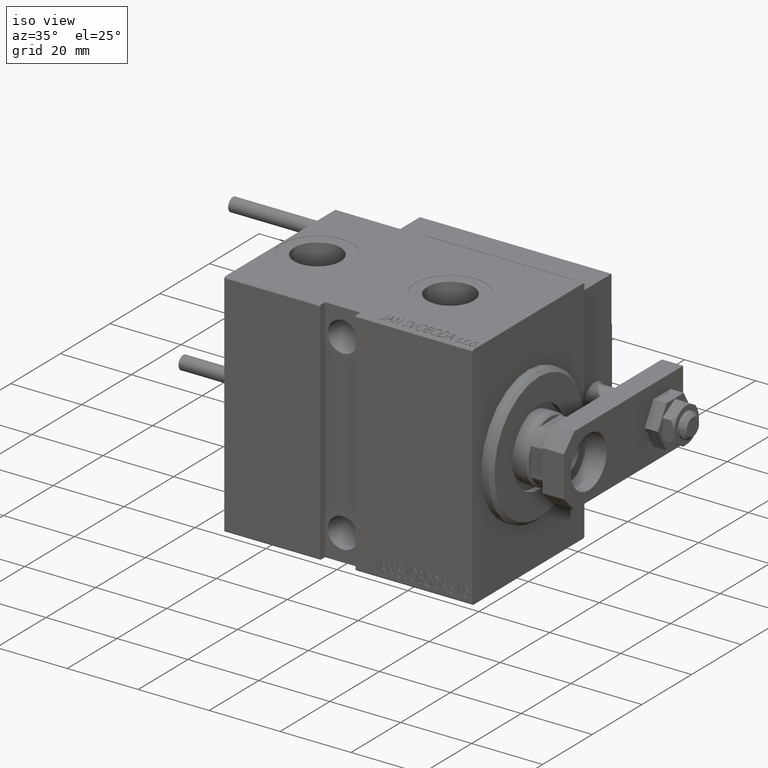
[diagram: clean part render]
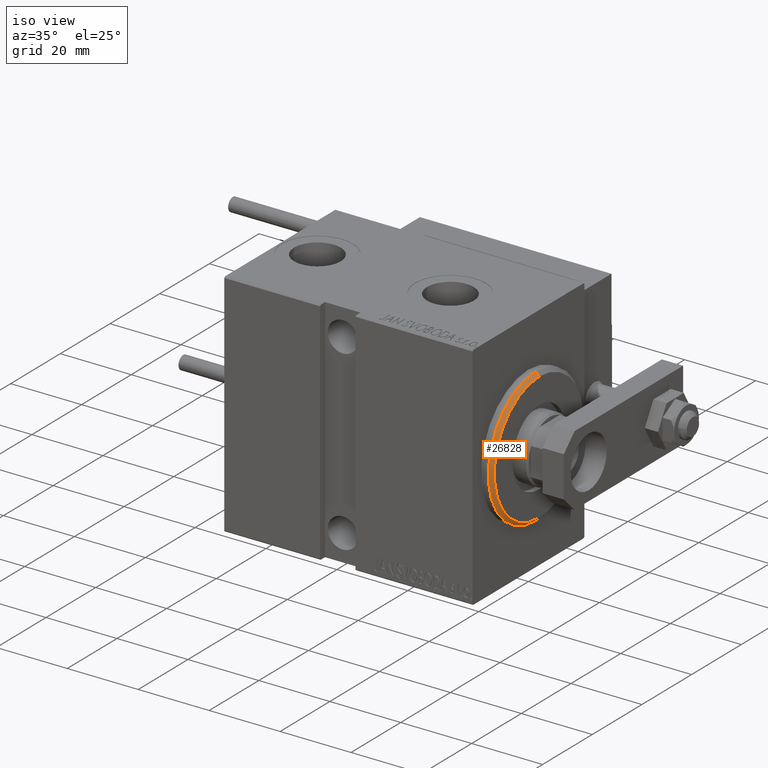
[diagram: same view with one face highlighted and labeled with its STEP entity id]
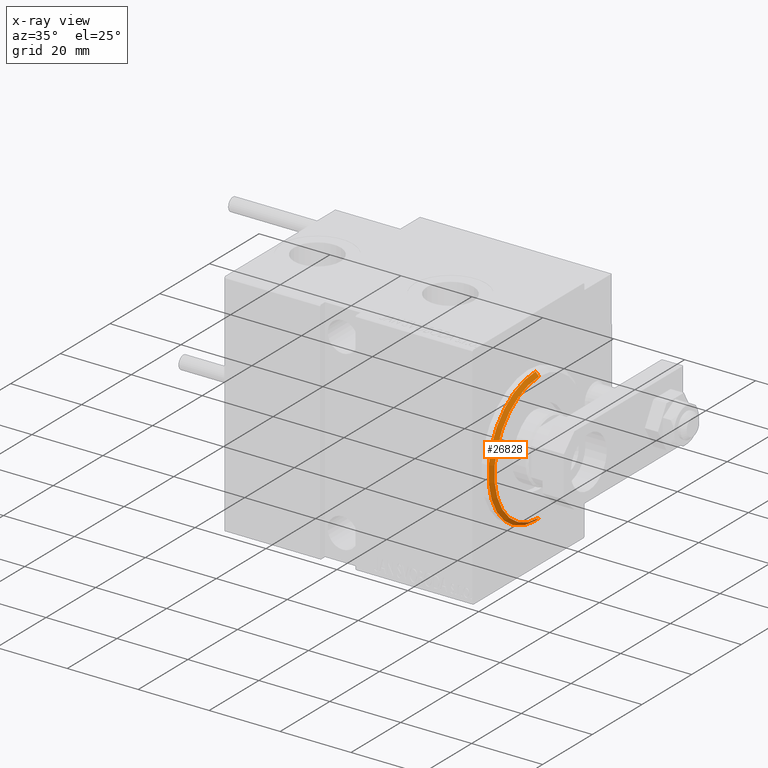
[diagram: x-ray of the same camera — body ghosted, the highlighted face saturated]
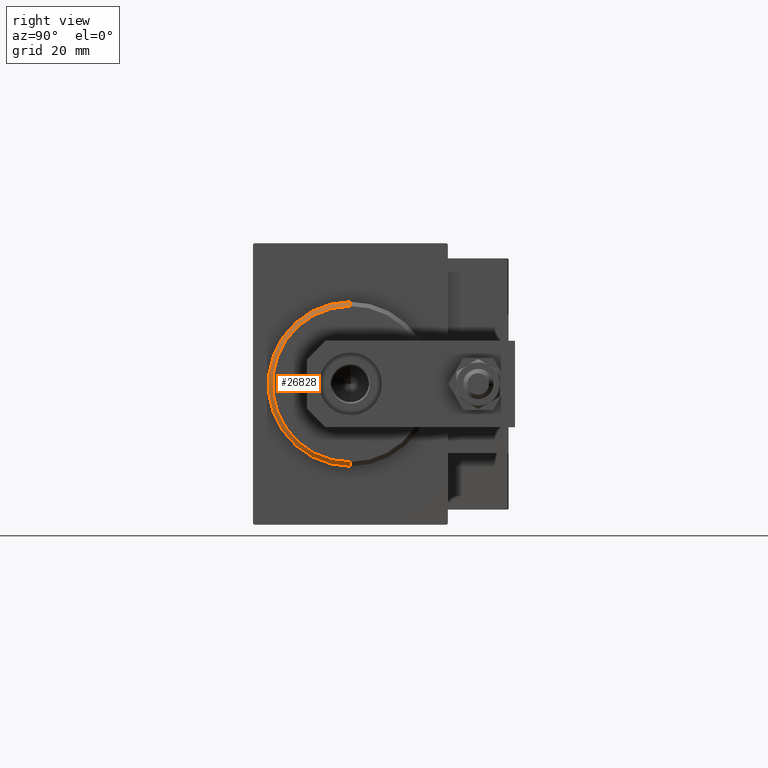
[diagram: same view with one face highlighted and labeled with its STEP entity id]
A machine part, iso view. The second image highlights one B-rep face of the part: STEP entity #26828.
The next image is the same camera in x-ray: the body ghosted, the highlighted face saturated — about 0% of this face is hidden behind the body in this view.
A second angle (right view) of the same face is appended — the face is thin or edge-on in the first view.
In plain terms, the highlighted conical surface has half-angle 45 deg.
Its self-contained STEP definition (entity closure, byte-faithful):
#780 = ORIENTED_EDGE ( 'NONE', *, *, #32799, .F. ) ;
#3946 = AXIS2_PLACEMENT_3D ( 'NONE', #34966, #15579, #30694 ) ;
#6255 = CARTESIAN_POINT ( 'NONE',  ( 3.000000000000000000, 0.000000000000000000, 17.99999999999999645 ) ) ;
#6409 = VERTEX_POINT ( 'NONE', #6255 ) ;
#10590 = CARTESIAN_POINT ( 'NONE',  ( 3.000000000000000000, 0.000000000000000000, 17.99999999999999645 ) ) ;
#11206 = CIRCLE ( 'NONE', #3946, 19.00000000000000000 ) ;
#12125 = CARTESIAN_POINT ( 'NONE',  ( 3.000000000000000000, 0.000000000000000000, 0.000000000000000000 ) ) ;
#12632 = AXIS2_PLACEMENT_3D ( 'NONE', #14454, #48986, #33600 ) ;
#13138 = EDGE_CURVE ( 'NONE', #6409, #27609, #24983, .T. ) ;
#13445 = LINE ( 'NONE', #32834, #45388 ) ;
#14397 = DIRECTION ( 'NONE',  ( -0.7071067811865487940, 0.000000000000000000, 0.7071067811865463515 ) ) ;
#14454 = CARTESIAN_POINT ( 'NONE',  ( 3.000000000000000000, 0.000000000000000000, 0.000000000000000000 ) ) ;
#14759 = CARTESIAN_POINT ( 'NONE',  ( 1.999999999999992228, 0.000000000000000000, 19.00000000000000000 ) ) ;
#15579 = DIRECTION ( 'NONE',  ( -1.000000000000000000, 0.000000000000000000, 0.000000000000000000 ) ) ;
#20221 = EDGE_CURVE ( 'NONE', #47592, #27609, #11206, .T. ) ;
#23201 = ORIENTED_EDGE ( 'NONE', *, *, #13138, .T. ) ;
#24983 = LINE ( 'NONE', #10590, #44756 ) ;
#25695 = CIRCLE ( 'NONE', #32130, 17.99999999999999645 ) ;
#26828 = ADVANCED_FACE ( 'NONE', ( #40158 ), #33533, .T. ) ;
#27609 = VERTEX_POINT ( 'NONE', #14759 ) ;
#28305 = CARTESIAN_POINT ( 'NONE',  ( 1.999999999999992228, 2.326828918379970970E-15, -19.00000000000000000 ) ) ;
#30515 = EDGE_LOOP ( 'NONE', ( #40276, #780, #23201, #42512 ) ) ;
#30694 = DIRECTION ( 'NONE',  ( 0.000000000000000000, 0.000000000000000000, -1.000000000000000000 ) ) ;
#31110 = VERTEX_POINT ( 'NONE', #39831 ) ;
#32130 = AXIS2_PLACEMENT_3D ( 'NONE', #12125, #49708, #42110 ) ;
#32799 = EDGE_CURVE ( 'NONE', #6409, #31110, #25695, .T. ) ;
#32834 = CARTESIAN_POINT ( 'NONE',  ( 3.000000000000000000, 2.204364238465235033E-15, -17.99999999999999645 ) ) ;
#33533 = CONICAL_SURFACE ( 'NONE', #12632, 17.99999999999999645, 0.7853981633974466137 ) ;
#33600 = DIRECTION ( 'NONE',  ( 0.000000000000000000, 0.000000000000000000, 1.000000000000000000 ) ) ;
#34966 = CARTESIAN_POINT ( 'NONE',  ( 1.999999999999992228, 0.000000000000000000, 0.000000000000000000 ) ) ;
#39831 = CARTESIAN_POINT ( 'NONE',  ( 3.000000000000000000, 2.265596578422603002E-15, -17.99999999999999645 ) ) ;
#40158 = FACE_OUTER_BOUND ( 'NONE', #30515, .T. ) ;
#40276 = ORIENTED_EDGE ( 'NONE', *, *, #49313, .F. ) ;
#42110 = DIRECTION ( 'NONE',  ( 0.000000000000000000, 0.000000000000000000, -1.000000000000000000 ) ) ;
#42512 = ORIENTED_EDGE ( 'NONE', *, *, #20221, .F. ) ;
#43940 = DIRECTION ( 'NONE',  ( -0.7071067811865487940, 8.659560562354918067E-17, -0.7071067811865463515 ) ) ;
#44756 = VECTOR ( 'NONE', #14397, 1000.000000000000000 ) ;
#45388 = VECTOR ( 'NONE', #43940, 1000.000000000000000 ) ;
#47592 = VERTEX_POINT ( 'NONE', #28305 ) ;
#48986 = DIRECTION ( 'NONE',  ( -1.000000000000000000, 0.000000000000000000, 0.000000000000000000 ) ) ;
#49313 = EDGE_CURVE ( 'NONE', #31110, #47592, #13445, .T. ) ;
#49708 = DIRECTION ( 'NONE',  ( 1.000000000000000000, -0.000000000000000000, 0.000000000000000000 ) ) ;